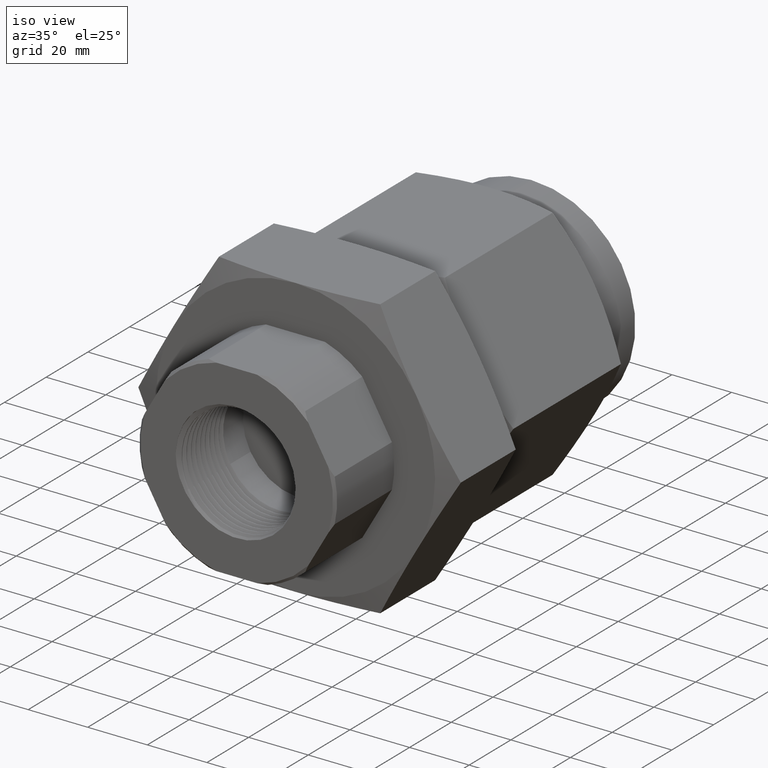
[diagram: clean part render]
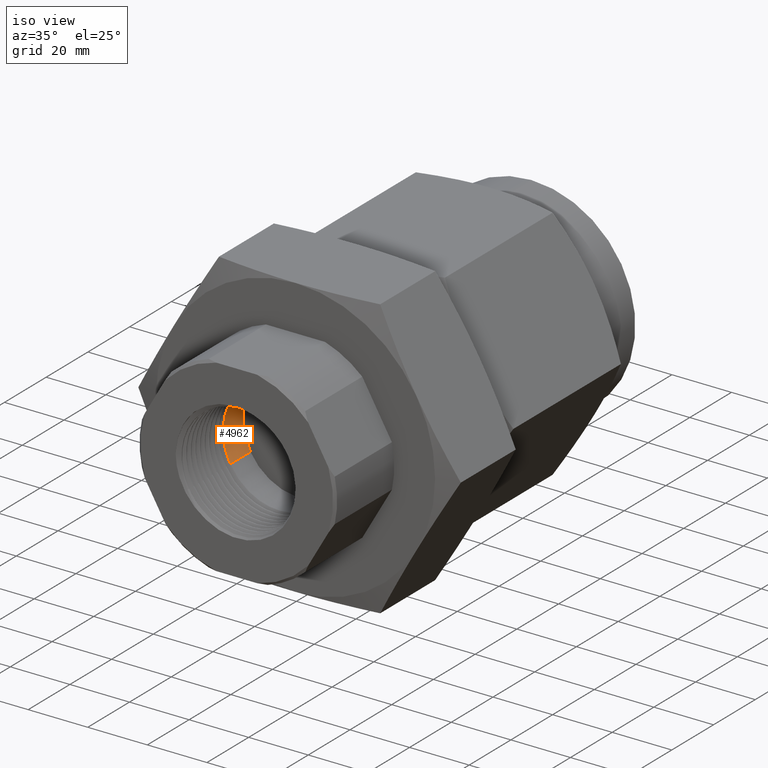
[diagram: same view with one face highlighted and labeled with its STEP entity id]
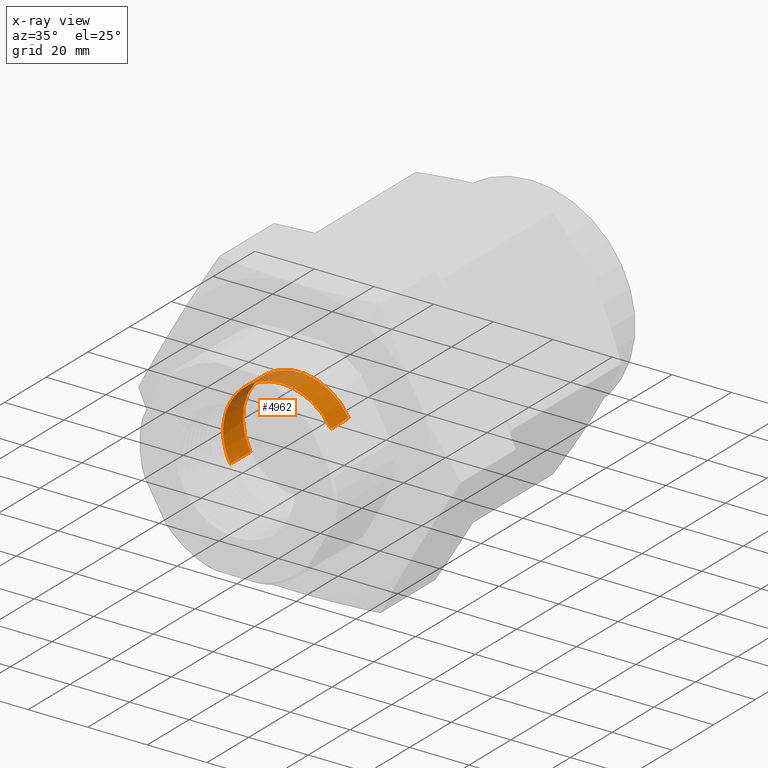
[diagram: x-ray of the same camera — body ghosted, the highlighted face saturated]
A machine part, iso view. The second image highlights one B-rep face of the part: STEP entity #4962.
The next image is the same camera in x-ray: the body ghosted, the highlighted face saturated — about 29% of this face is hidden behind the body in this view.
In plain terms, the highlighted cylindrical surface (partial cylindrical patch) has radius 19.05 mm, axis along (0, -1, -0).
Its self-contained STEP definition (entity closure, byte-faithful):
#61 = EDGE_CURVE ( 'Defeatured_0_67+Defeatured_0_66+Defeatured_0_65+Defeatured_0_68', #5547, #7065, #4052, .T. ) ;
#444 = CARTESIAN_POINT ( 'NONE',  ( -0.6495190528381779016, -5.042761311599803342, -0.3749999999999993339 ) ) ;
#558 = CARTESIAN_POINT ( 'NONE',  ( -0.3942961125618409945, -5.021022137637689120, 0.6829460305771223316 ) ) ;
#773 = EDGE_LOOP ( 'NONE', ( #6249, #1170, #5933, #7341 ) ) ;
#900 = CARTESIAN_POINT ( 'NONE',  ( 0.6495190528384805484, -4.662865258923458711, 0.3750000000000002776 ) ) ;
#1170 = ORIENTED_EDGE ( 'NONE', *, *, #1511, .F. ) ;
#1254 = CYLINDRICAL_SURFACE ( 'NONE', #6344, 0.7500000000000001110 ) ;
#1323 = CARTESIAN_POINT ( 'NONE',  ( 0.08243334900643928265, -5.012326485463776571, 0.7842763849779966767 ) ) ;
#1451 = VECTOR ( 'NONE', #9239, 39.37007874015748143 ) ;
#1511 = EDGE_CURVE ( 'Defeatured_0_62+Defeatured_0_67+Defeatured_0_67+Defeatured_0_67', #6762, #7200, #7112, .T. ) ;
#2109 = CARTESIAN_POINT ( 'NONE',  ( 0.3050547110336197520, -5.007978659376820296, 0.6851581009345852902 ) ) ;
#2168 = CARTESIAN_POINT ( 'NONE',  ( 0.6495190528384811035, -4.999283050730237044, 0.3749999999999993894 ) ) ;
#2217 = FACE_OUTER_BOUND ( 'NONE', #773, .T. ) ;
#2696 = CARTESIAN_POINT ( 'NONE',  ( 1.516655047970987846E-13, -4.850326807657659778, 0.0000000000000000000 ) ) ;
#2845 = CARTESIAN_POINT ( 'NONE',  ( -0.6495196627498720510, -5.042761289836126259, -0.3749989436019569022 ) ) ;
#3049 = AXIS2_PLACEMENT_3D ( 'NONE', #8506, #3934, #9267 ) ;
#3285 = VECTOR ( 'NONE', #7855, 39.37007874015748143 ) ;
#3620 = CARTESIAN_POINT ( 'NONE',  ( -0.6495190528381774575, -4.662865258923458711, -0.3750000000000002220 ) ) ;
#3625 = CARTESIAN_POINT ( 'NONE',  ( -0.7713644722557627675, -5.038413441985515995, -0.1639559575126871283 ) ) ;
#3934 = DIRECTION ( 'NONE',  ( 0.0000000000000000000, -1.000000000000000000, -0.0000000000000000000 ) ) ;
#4052 =( BOUNDED_CURVE ( )  B_SPLINE_CURVE ( 2, ( #2168, #8224, #2109, #1323, #5947, #558, #5165, #9739, #4390, #3625, #8191, #2845, #7444 ),
 .UNSPECIFIED., .F., .F. ) 
 B_SPLINE_CURVE_WITH_KNOTS ( ( 3, 2, 2, 2, 2, 2, 3 ),
 ( 0.007258334517132535545, 0.01634919576040061440, 0.02544010485130965282, 0.03453101394221880227, 0.04362192303312784070, 0.05271283212403698321, 0.05271287997167806161 ),
 .UNSPECIFIED. ) 
 CURVE ( )  GEOMETRIC_REPRESENTATION_ITEM ( )  RATIONAL_B_SPLINE_CURVE ( ( 0.9999994848000586245, 0.9510567738964801343, 1.000000000000000000, 0.9510565162951536422, 1.000000000000000000, 0.9510565162951536422, 1.000000000000000000, 0.9510565162951536422, 1.000000000000000000, 0.9510565162951536422, 1.000000000000000000, 0.9999997423986735079, 0.9999994848000586245 ) ) 
 REPRESENTATION_ITEM ( '' )  );
#4390 = CARTESIAN_POINT ( 'NONE',  ( -0.7458911665095786514, -5.034065615898558832, 0.07839877373246252612 ) ) ;
#4962 = ADVANCED_FACE ( 'Defeatured_0_67', ( #2217 ), #1254, .F. ) ;
#5165 = CARTESIAN_POINT ( 'NONE',  ( -0.5573569866626176816, -5.025369963724646283, 0.5018497677773673393 ) ) ;
#5325 = EDGE_CURVE ( 'NONE', #7200, #7065, #5586, .T. ) ;
#5415 = CARTESIAN_POINT ( 'NONE',  ( 0.6495190528384805484, -4.850326807657659778, 0.3750000000000002776 ) ) ;
#5547 = VERTEX_POINT ( 'NONE', #5841 ) ;
#5586 = LINE ( 'NONE', #8529, #3285 ) ;
#5841 = CARTESIAN_POINT ( 'NONE',  ( 0.6495190528384811035, -4.999283050730237044, 0.3749999999999993894 ) ) ;
#5933 = ORIENTED_EDGE ( 'NONE', *, *, #5994, .T. ) ;
#5947 = CARTESIAN_POINT ( 'NONE',  ( -0.1559313817777008560, -5.016674311550732845, 0.7336112077775597262 ) ) ;
#5994 = EDGE_CURVE ( 'NONE', #6762, #5547, #9848, .T. ) ;
#6249 = ORIENTED_EDGE ( 'NONE', *, *, #5325, .F. ) ;
#6344 = AXIS2_PLACEMENT_3D ( 'NONE', #2696, #8815, #8051 ) ;
#6762 = VERTEX_POINT ( 'NONE', #900 ) ;
#7065 = VERTEX_POINT ( 'NONE', #444 ) ;
#7112 = CIRCLE ( 'NONE', #3049, 0.7500000000000001110 ) ;
#7200 = VERTEX_POINT ( 'NONE', #3620 ) ;
#7341 = ORIENTED_EDGE ( 'NONE', *, *, #61, .T. ) ;
#7444 = CARTESIAN_POINT ( 'NONE',  ( -0.6495190528381779016, -5.042761311599803342, -0.3749999999999993339 ) ) ;
#7855 = DIRECTION ( 'NONE',  ( 0.0000000000000000000, -1.000000000000000000, -0.0000000000000000000 ) ) ;
#8051 = DIRECTION ( 'NONE',  ( 0.8660254037844383745, 0.0000000000000000000, 0.5000000000000003331 ) ) ;
#8191 = CARTESIAN_POINT ( 'NONE',  ( -0.6495202726581299491, -5.042761268072471381, -0.3749978872019305576 ) ) ;
#8224 = CARTESIAN_POINT ( 'NONE',  ( 0.5276748410525700095, -5.003630857351154759, 0.5860403654213802715 ) ) ;
#8506 = CARTESIAN_POINT ( 'NONE',  ( 1.516655047970987846E-13, -4.662865258923458711, 0.0000000000000000000 ) ) ;
#8529 = CARTESIAN_POINT ( 'NONE',  ( -0.6495190528381773465, -4.850326807657659778, -0.3750000000000001665 ) ) ;
#8815 = DIRECTION ( 'NONE',  ( 0.0000000000000000000, -1.000000000000000000, -0.0000000000000000000 ) ) ;
#9239 = DIRECTION ( 'NONE',  ( 0.0000000000000000000, -1.000000000000000000, -0.0000000000000000000 ) ) ;
#9267 = DIRECTION ( 'NONE',  ( 0.8660254037844383745, 0.0000000000000000000, 0.5000000000000003331 ) ) ;
#9739 = CARTESIAN_POINT ( 'NONE',  ( -0.7204178607633943132, -5.029717789811603446, 0.3207535049776121805 ) ) ;
#9848 = LINE ( 'NONE', #5415, #1451 ) ;